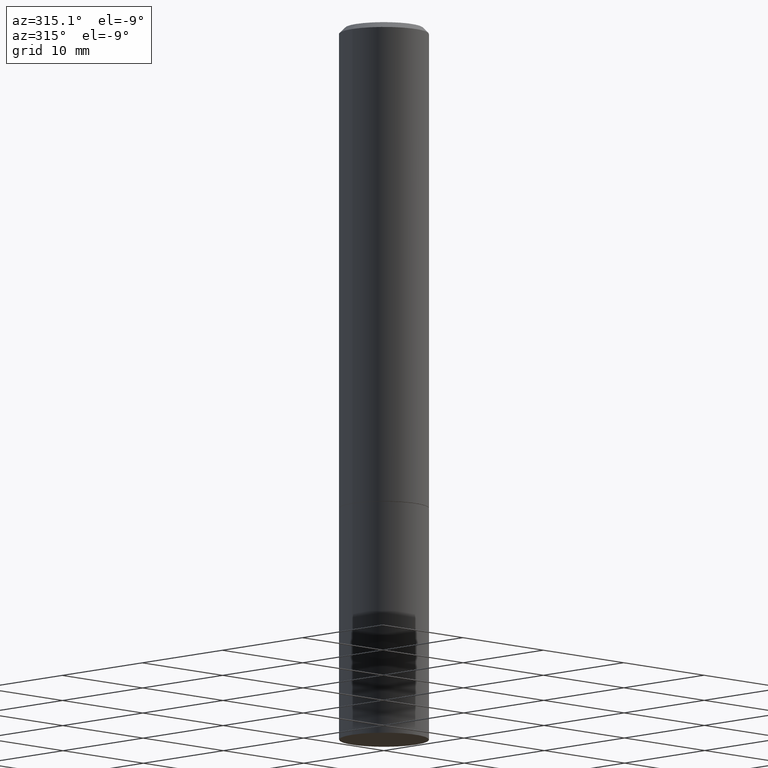
[diagram: clean part render]
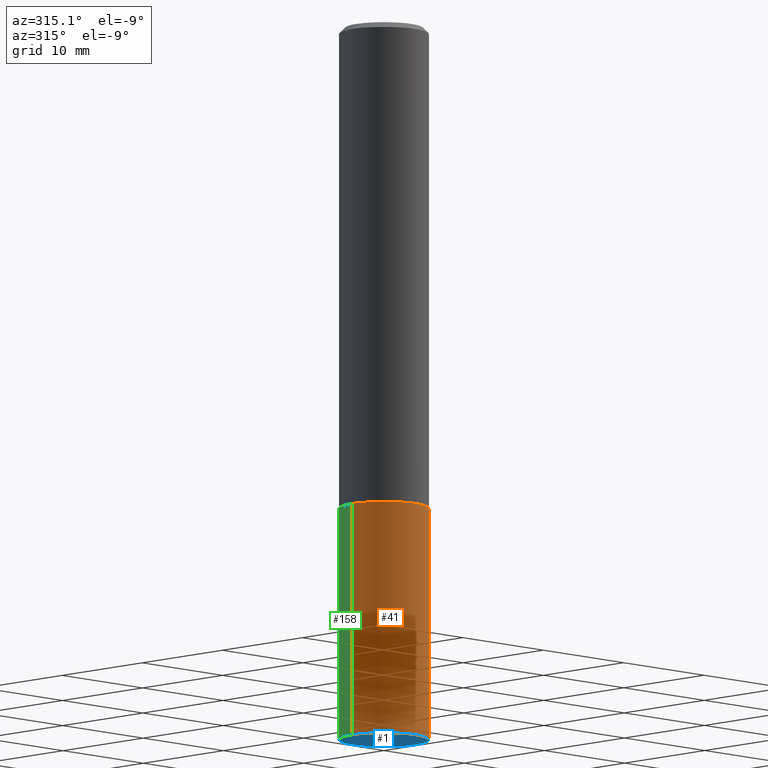
[diagram: same view with three faces highlighted in distinct colors, each labeled with its STEP entity id]
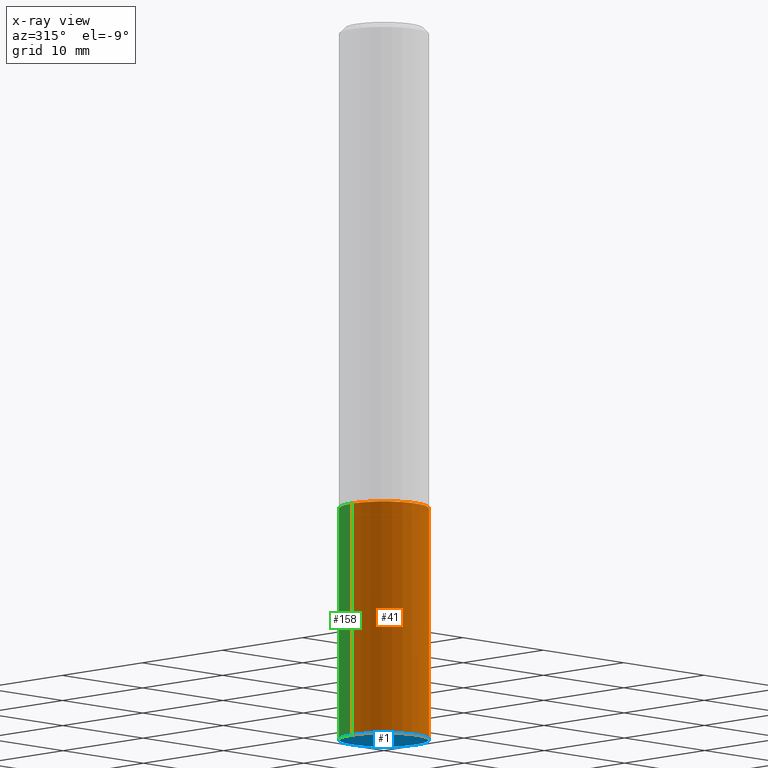
[diagram: x-ray of the same camera — body ghosted, the three highlighted faces saturated]
A machine part, auxiliary view with three faces highlighted in distinct colors.
The next image is the same camera in x-ray (body ghosted, the three faces saturated) — at least one of them is partly hidden behind the body in this view.
Their STEP definitions:

[orange] entity #41 — the highlighted cylindrical surface (partial cylindrical patch) has radius 3.9688 mm, axis along (-0, 0, 1).
#14 = CIRCLE ( 'NONE', #267, 0.1562500000000000000 ) ;
#25 = VERTEX_POINT ( 'NONE', #241 ) ;
#39 = AXIS2_PLACEMENT_3D ( 'NONE', #83, #187, #120 ) ;
#41 = ADVANCED_FACE ( 'NONE', ( #329 ), #270, .T. ) ;
#57 = EDGE_LOOP ( 'NONE', ( #240, #360, #136, #89 ) ) ;
#73 = CARTESIAN_POINT ( 'NONE',  ( 4.126728610437418007E-29, -5.891874759297807259E-15, -1.687500000000000000 ) ) ;
#82 = DIRECTION ( 'NONE',  ( 1.000000000000000000, -6.982962677686269077E-15, 0.000000000000000000 ) ) ;
#83 = CARTESIAN_POINT ( 'NONE',  ( 0.000000000000000000, 0.000000000000000000, 0.000000000000000000 ) ) ;
#89 = ORIENTED_EDGE ( 'NONE', *, *, #324, .F. ) ;
#98 = VERTEX_POINT ( 'NONE', #168 ) ;
#115 = CARTESIAN_POINT ( 'NONE',  ( 6.113672015462842613E-29, -8.728703347107864943E-15, -2.500000000000000000 ) ) ;
#120 = DIRECTION ( 'NONE',  ( 1.000000000000000000, -6.982962677686266711E-15, 4.876176775795936353E-29 ) ) ;
#133 = DIRECTION ( 'NONE',  ( 1.000000000000000000, -6.982962677686269077E-15, 0.000000000000000000 ) ) ;
#136 = ORIENTED_EDGE ( 'NONE', *, *, #322, .T. ) ;
#146 = DIRECTION ( 'NONE',  ( -2.445468806185136597E-29, 3.491481338843145583E-15, 1.000000000000000000 ) ) ;
#152 = LINE ( 'NONE', #264, #302 ) ;
#168 = CARTESIAN_POINT ( 'NONE',  ( -0.1562500000000000000, -6.200066028577678771E-15, -2.500000000000000000 ) ) ;
#179 = EDGE_CURVE ( 'NONE', #98, #255, #14, .T. ) ;
#187 = DIRECTION ( 'NONE',  ( -2.445468806185136597E-29, 3.491481338843145583E-15, 1.000000000000000000 ) ) ;
#194 = DIRECTION ( 'NONE',  ( -2.445468806185136877E-29, 3.491481338843145188E-15, 1.000000000000000000 ) ) ;
#213 = DIRECTION ( 'NONE',  ( -2.445468806185136597E-29, 3.491481338843145583E-15, 1.000000000000000000 ) ) ;
#233 = CIRCLE ( 'NONE', #303, 0.1562500000000000000 ) ;
#238 = VECTOR ( 'NONE', #194, 39.37007874015748143 ) ;
#240 = ORIENTED_EDGE ( 'NONE', *, *, #273, .F. ) ;
#241 = CARTESIAN_POINT ( 'NONE',  ( -0.1562500000000000000, -6.200066028577678771E-15, -1.687500000000000000 ) ) ;
#255 = VERTEX_POINT ( 'NONE', #288 ) ;
#264 = CARTESIAN_POINT ( 'NONE',  ( 0.1562500000000000000, -1.091087918388479174E-15, 7.619026212181150377E-30 ) ) ;
#267 = AXIS2_PLACEMENT_3D ( 'NONE', #115, #213, #82 ) ;
#270 = CYLINDRICAL_SURFACE ( 'NONE', #39, 0.1562500000000000000 ) ;
#273 = EDGE_CURVE ( 'NONE', #98, #25, #313, .T. ) ;
#286 = DIRECTION ( 'NONE',  ( -2.445468806185136877E-29, 3.491481338843145188E-15, 1.000000000000000000 ) ) ;
#288 = CARTESIAN_POINT ( 'NONE',  ( 0.1562500000000000000, -9.819791265496344905E-15, -2.500000000000000000 ) ) ;
#295 = VERTEX_POINT ( 'NONE', #345 ) ;
#302 = VECTOR ( 'NONE', #286, 39.37007874015748143 ) ;
#303 = AXIS2_PLACEMENT_3D ( 'NONE', #73, #146, #133 ) ;
#313 = LINE ( 'NONE', #317, #238 ) ;
#317 = CARTESIAN_POINT ( 'NONE',  ( -0.1562500000000000000, 1.110223024625156540E-15, -7.685836078523291160E-30 ) ) ;
#322 = EDGE_CURVE ( 'NONE', #255, #295, #152, .T. ) ;
#324 = EDGE_CURVE ( 'NONE', #25, #295, #233, .T. ) ;
#329 = FACE_OUTER_BOUND ( 'NONE', #57, .T. ) ;
#345 = CARTESIAN_POINT ( 'NONE',  ( 0.1562500000000000000, -6.982962677686287221E-15, -1.687500000000000000 ) ) ;
#360 = ORIENTED_EDGE ( 'NONE', *, *, #179, .T. ) ;

[blue] entity #1 — the highlighted planar face has unit normal (0, -0, -1).
#1 = ADVANCED_FACE ( 'NONE', ( #108 ), #210, .T. ) ;
#14 = CIRCLE ( 'NONE', #267, 0.1562500000000000000 ) ;
#26 = ORIENTED_EDGE ( 'NONE', *, *, #307, .F. ) ;
#61 = ORIENTED_EDGE ( 'NONE', *, *, #179, .F. ) ;
#76 = CARTESIAN_POINT ( 'NONE',  ( 1.091087918388540310E-15, 0.1562499999999912570, -2.500000000000000444 ) ) ;
#82 = DIRECTION ( 'NONE',  ( 1.000000000000000000, -6.982962677686269077E-15, 0.000000000000000000 ) ) ;
#98 = VERTEX_POINT ( 'NONE', #168 ) ;
#102 = DIRECTION ( 'NONE',  ( 1.000000000000000000, -6.982962677686269077E-15, 0.000000000000000000 ) ) ;
#108 = FACE_OUTER_BOUND ( 'NONE', #216, .T. ) ;
#115 = CARTESIAN_POINT ( 'NONE',  ( 6.113672015462842613E-29, -8.728703347107864943E-15, -2.500000000000000000 ) ) ;
#116 = AXIS2_PLACEMENT_3D ( 'NONE', #76, #180, #297 ) ;
#168 = CARTESIAN_POINT ( 'NONE',  ( -0.1562500000000000000, -6.200066028577678771E-15, -2.500000000000000000 ) ) ;
#179 = EDGE_CURVE ( 'NONE', #98, #255, #14, .T. ) ;
#180 = DIRECTION ( 'NONE',  ( 2.438088387897960049E-29, -3.491481338843145188E-15, -1.000000000000000000 ) ) ;
#195 = CIRCLE ( 'NONE', #359, 0.1562500000000000000 ) ;
#210 = PLANE ( 'NONE',  #116 ) ;
#213 = DIRECTION ( 'NONE',  ( -2.445468806185136597E-29, 3.491481338843145583E-15, 1.000000000000000000 ) ) ;
#216 = EDGE_LOOP ( 'NONE', ( #26, #61 ) ) ;
#232 = DIRECTION ( 'NONE',  ( -2.445468806185136597E-29, 3.491481338843145583E-15, 1.000000000000000000 ) ) ;
#255 = VERTEX_POINT ( 'NONE', #288 ) ;
#256 = CARTESIAN_POINT ( 'NONE',  ( 6.113672015462842613E-29, -8.728703347107864943E-15, -2.500000000000000000 ) ) ;
#267 = AXIS2_PLACEMENT_3D ( 'NONE', #115, #213, #82 ) ;
#288 = CARTESIAN_POINT ( 'NONE',  ( 0.1562500000000000000, -9.819791265496344905E-15, -2.500000000000000000 ) ) ;
#297 = DIRECTION ( 'NONE',  ( -1.000000000000000000, 6.982962677686265922E-15, -4.876176775795935793E-29 ) ) ;
#307 = EDGE_CURVE ( 'NONE', #255, #98, #195, .T. ) ;
#359 = AXIS2_PLACEMENT_3D ( 'NONE', #256, #232, #102 ) ;

[green] entity #158 — the highlighted cylindrical surface (partial cylindrical patch) has radius 3.9688 mm, axis along (-0, 0, 1).
#18 = DIRECTION ( 'NONE',  ( 1.000000000000000000, -6.982962677686266711E-15, 4.876176775795936353E-29 ) ) ;
#25 = VERTEX_POINT ( 'NONE', #241 ) ;
#36 = CARTESIAN_POINT ( 'NONE',  ( 0.000000000000000000, 0.000000000000000000, 0.000000000000000000 ) ) ;
#63 = CYLINDRICAL_SURFACE ( 'NONE', #357, 0.1562500000000000000 ) ;
#65 = DIRECTION ( 'NONE',  ( 1.000000000000000000, -6.982962677686269077E-15, 0.000000000000000000 ) ) ;
#75 = AXIS2_PLACEMENT_3D ( 'NONE', #230, #201, #65 ) ;
#98 = VERTEX_POINT ( 'NONE', #168 ) ;
#102 = DIRECTION ( 'NONE',  ( 1.000000000000000000, -6.982962677686269077E-15, 0.000000000000000000 ) ) ;
#118 = ORIENTED_EDGE ( 'NONE', *, *, #234, .F. ) ;
#152 = LINE ( 'NONE', #264, #302 ) ;
#155 = DIRECTION ( 'NONE',  ( -2.445468806185136597E-29, 3.491481338843145583E-15, 1.000000000000000000 ) ) ;
#158 = ADVANCED_FACE ( 'NONE', ( #296 ), #63, .T. ) ;
#167 = ORIENTED_EDGE ( 'NONE', *, *, #322, .F. ) ;
#168 = CARTESIAN_POINT ( 'NONE',  ( -0.1562500000000000000, -6.200066028577678771E-15, -2.500000000000000000 ) ) ;
#178 = ORIENTED_EDGE ( 'NONE', *, *, #273, .T. ) ;
#194 = DIRECTION ( 'NONE',  ( -2.445468806185136877E-29, 3.491481338843145188E-15, 1.000000000000000000 ) ) ;
#195 = CIRCLE ( 'NONE', #359, 0.1562500000000000000 ) ;
#201 = DIRECTION ( 'NONE',  ( -2.445468806185136597E-29, 3.491481338843145583E-15, 1.000000000000000000 ) ) ;
#226 = ORIENTED_EDGE ( 'NONE', *, *, #307, .T. ) ;
#230 = CARTESIAN_POINT ( 'NONE',  ( 4.126728610437418007E-29, -5.891874759297807259E-15, -1.687500000000000000 ) ) ;
#232 = DIRECTION ( 'NONE',  ( -2.445468806185136597E-29, 3.491481338843145583E-15, 1.000000000000000000 ) ) ;
#234 = EDGE_CURVE ( 'NONE', #295, #25, #311, .T. ) ;
#238 = VECTOR ( 'NONE', #194, 39.37007874015748143 ) ;
#241 = CARTESIAN_POINT ( 'NONE',  ( -0.1562500000000000000, -6.200066028577678771E-15, -1.687500000000000000 ) ) ;
#255 = VERTEX_POINT ( 'NONE', #288 ) ;
#256 = CARTESIAN_POINT ( 'NONE',  ( 6.113672015462842613E-29, -8.728703347107864943E-15, -2.500000000000000000 ) ) ;
#264 = CARTESIAN_POINT ( 'NONE',  ( 0.1562500000000000000, -1.091087918388479174E-15, 7.619026212181150377E-30 ) ) ;
#273 = EDGE_CURVE ( 'NONE', #98, #25, #313, .T. ) ;
#282 = EDGE_LOOP ( 'NONE', ( #226, #178, #118, #167 ) ) ;
#286 = DIRECTION ( 'NONE',  ( -2.445468806185136877E-29, 3.491481338843145188E-15, 1.000000000000000000 ) ) ;
#288 = CARTESIAN_POINT ( 'NONE',  ( 0.1562500000000000000, -9.819791265496344905E-15, -2.500000000000000000 ) ) ;
#295 = VERTEX_POINT ( 'NONE', #345 ) ;
#296 = FACE_OUTER_BOUND ( 'NONE', #282, .T. ) ;
#302 = VECTOR ( 'NONE', #286, 39.37007874015748143 ) ;
#307 = EDGE_CURVE ( 'NONE', #255, #98, #195, .T. ) ;
#311 = CIRCLE ( 'NONE', #75, 0.1562500000000000000 ) ;
#313 = LINE ( 'NONE', #317, #238 ) ;
#317 = CARTESIAN_POINT ( 'NONE',  ( -0.1562500000000000000, 1.110223024625156540E-15, -7.685836078523291160E-30 ) ) ;
#322 = EDGE_CURVE ( 'NONE', #255, #295, #152, .T. ) ;
#345 = CARTESIAN_POINT ( 'NONE',  ( 0.1562500000000000000, -6.982962677686287221E-15, -1.687500000000000000 ) ) ;
#357 = AXIS2_PLACEMENT_3D ( 'NONE', #36, #155, #18 ) ;
#359 = AXIS2_PLACEMENT_3D ( 'NONE', #256, #232, #102 ) ;